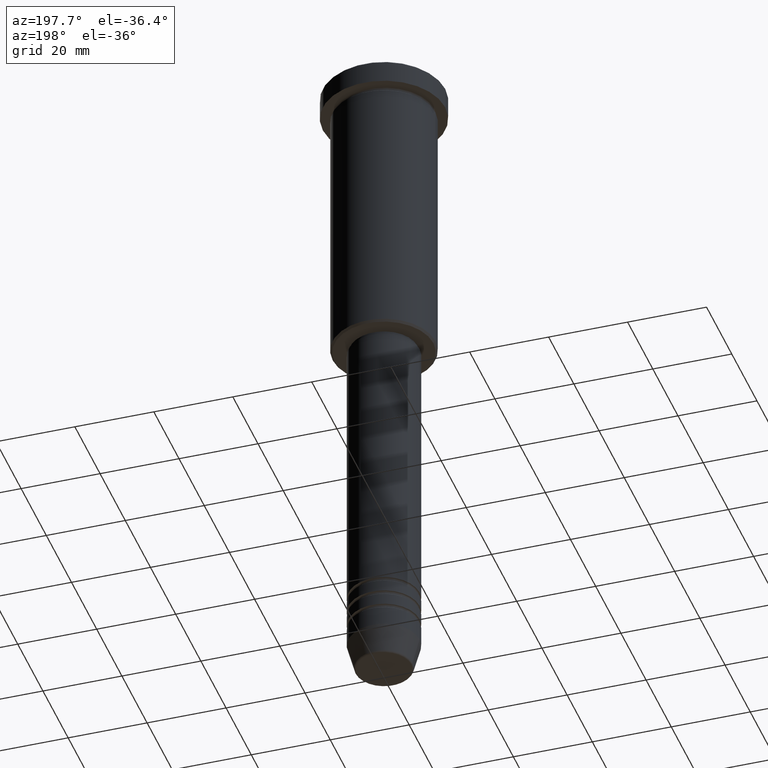
[diagram: clean part render]
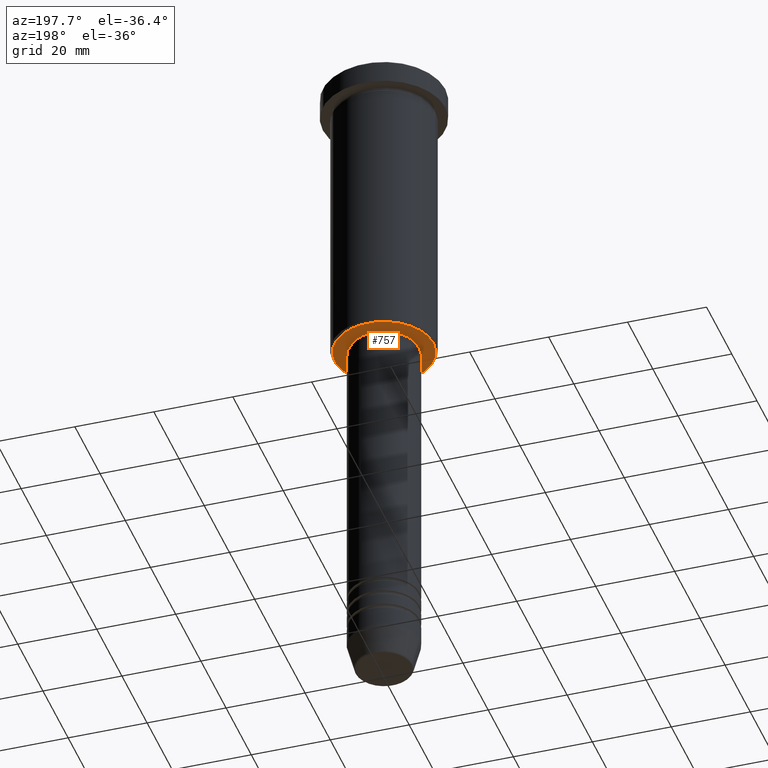
[diagram: same view with one face highlighted and labeled with its STEP entity id]
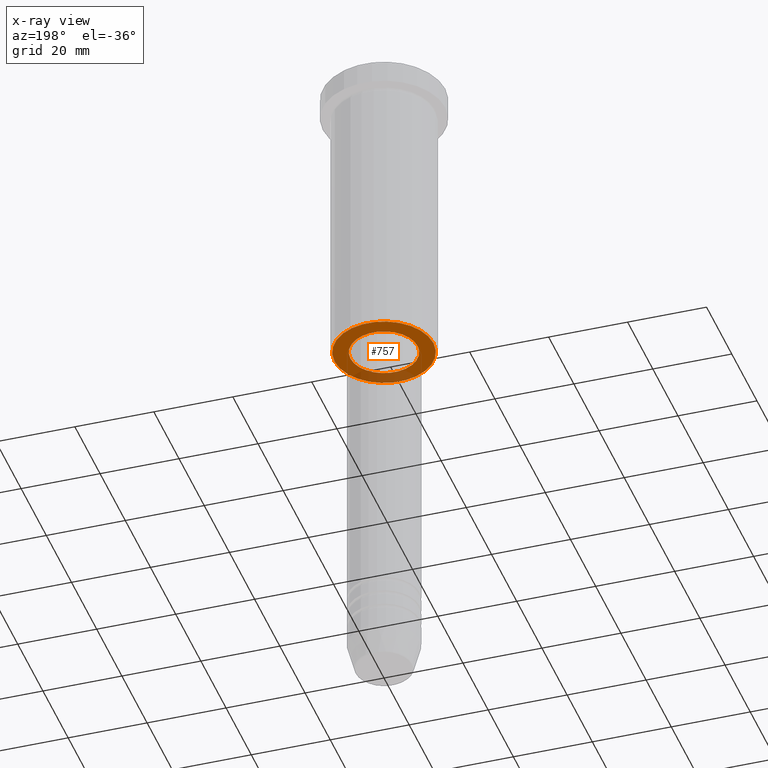
[diagram: x-ray of the same camera — body ghosted, the highlighted face saturated]
A machine part, auxiliary view. The second image highlights one B-rep face of the part: STEP entity #757.
The next image is the same camera in x-ray: the body ghosted, the highlighted face saturated — about 20% of this face is hidden behind the body in this view.
In plain terms, the highlighted planar face has unit normal (0, 0, -1).
Its self-contained STEP definition (entity closure, byte-faithful):
#2 = VERTEX_POINT ( 'NONE', #1124 ) ;
#26 = DIRECTION ( 'NONE',  ( 0.000000000000000000, 0.000000000000000000, -1.000000000000000000 ) ) ;
#27 = ORIENTED_EDGE ( 'NONE', *, *, #68, .T. ) ;
#43 = CARTESIAN_POINT ( 'NONE',  ( 0.000000000000000000, 0.000000000000000000, -75.99999999999998579 ) ) ;
#68 = EDGE_CURVE ( 'NONE', #116, #134, #1182, .T. ) ;
#72 = ORIENTED_EDGE ( 'NONE', *, *, #393, .T. ) ;
#75 = DIRECTION ( 'NONE',  ( -1.000000000000000000, 0.000000000000000000, 0.000000000000000000 ) ) ;
#99 = DIRECTION ( 'NONE',  ( 1.000000000000000000, 0.000000000000000000, 0.000000000000000000 ) ) ;
#116 = VERTEX_POINT ( 'NONE', #448 ) ;
#131 = CIRCLE ( 'NONE', #913, 12.49999999999996980 ) ;
#134 = VERTEX_POINT ( 'NONE', #1002 ) ;
#163 = ORIENTED_EDGE ( 'NONE', *, *, #847, .T. ) ;
#273 = ORIENTED_EDGE ( 'NONE', *, *, #698, .T. ) ;
#286 = CARTESIAN_POINT ( 'NONE',  ( 12.49999999999996980, 0.000000000000000000, -75.99999999999998579 ) ) ;
#374 = CARTESIAN_POINT ( 'NONE',  ( 0.000000000000000000, 0.000000000000000000, -75.99999999999998579 ) ) ;
#393 = EDGE_CURVE ( 'NONE', #634, #2, #798, .T. ) ;
#406 = DIRECTION ( 'NONE',  ( -1.000000000000000000, 0.000000000000000000, -0.000000000000000000 ) ) ;
#448 = CARTESIAN_POINT ( 'NONE',  ( -8.500000000000000000, 1.040949779275250140E-15, -75.99999999999998579 ) ) ;
#519 = DIRECTION ( 'NONE',  ( 0.000000000000000000, 0.000000000000000000, -1.000000000000000000 ) ) ;
#534 = AXIS2_PLACEMENT_3D ( 'NONE', #43, #519, #879 ) ;
#550 = EDGE_LOOP ( 'NONE', ( #273, #27 ) ) ;
#575 = DIRECTION ( 'NONE',  ( -0.000000000000000000, -0.000000000000000000, 1.000000000000000000 ) ) ;
#581 = PLANE ( 'NONE',  #1023 ) ;
#616 = CARTESIAN_POINT ( 'NONE',  ( 0.000000000000000000, 0.000000000000000000, -75.99999999999998579 ) ) ;
#634 = VERTEX_POINT ( 'NONE', #286 ) ;
#646 = DIRECTION ( 'NONE',  ( -0.000000000000000000, -0.000000000000000000, 1.000000000000000000 ) ) ;
#680 = FACE_OUTER_BOUND ( 'NONE', #868, .T. ) ;
#698 = EDGE_CURVE ( 'NONE', #134, #116, #947, .T. ) ;
#757 = ADVANCED_FACE ( 'NONE', ( #680, #1028 ), #581, .T. ) ;
#798 = CIRCLE ( 'NONE', #534, 12.49999999999996980 ) ;
#817 = DIRECTION ( 'NONE',  ( 1.000000000000000000, 0.000000000000000000, 0.000000000000000000 ) ) ;
#818 = AXIS2_PLACEMENT_3D ( 'NONE', #998, #575, #99 ) ;
#847 = EDGE_CURVE ( 'NONE', #2, #634, #131, .T. ) ;
#852 = CARTESIAN_POINT ( 'NONE',  ( 0.000000000000000000, 13.00000000000000000, -75.99999999999998579 ) ) ;
#868 = EDGE_LOOP ( 'NONE', ( #72, #163 ) ) ;
#879 = DIRECTION ( 'NONE',  ( -1.000000000000000000, 0.000000000000000000, 0.000000000000000000 ) ) ;
#897 = DIRECTION ( 'NONE',  ( 0.000000000000000000, 0.000000000000000000, -1.000000000000000000 ) ) ;
#913 = AXIS2_PLACEMENT_3D ( 'NONE', #616, #897, #75 ) ;
#947 = CIRCLE ( 'NONE', #818, 8.500000000000000000 ) ;
#998 = CARTESIAN_POINT ( 'NONE',  ( 0.000000000000000000, 0.000000000000000000, -75.99999999999998579 ) ) ;
#1002 = CARTESIAN_POINT ( 'NONE',  ( 8.500000000000000000, 0.000000000000000000, -75.99999999999998579 ) ) ;
#1023 = AXIS2_PLACEMENT_3D ( 'NONE', #852, #26, #406 ) ;
#1028 = FACE_BOUND ( 'NONE', #550, .T. ) ;
#1124 = CARTESIAN_POINT ( 'NONE',  ( -12.49999999999996980, 1.561424668912873336E-15, -75.99999999999998579 ) ) ;
#1174 = AXIS2_PLACEMENT_3D ( 'NONE', #374, #646, #817 ) ;
#1182 = CIRCLE ( 'NONE', #1174, 8.500000000000000000 ) ;